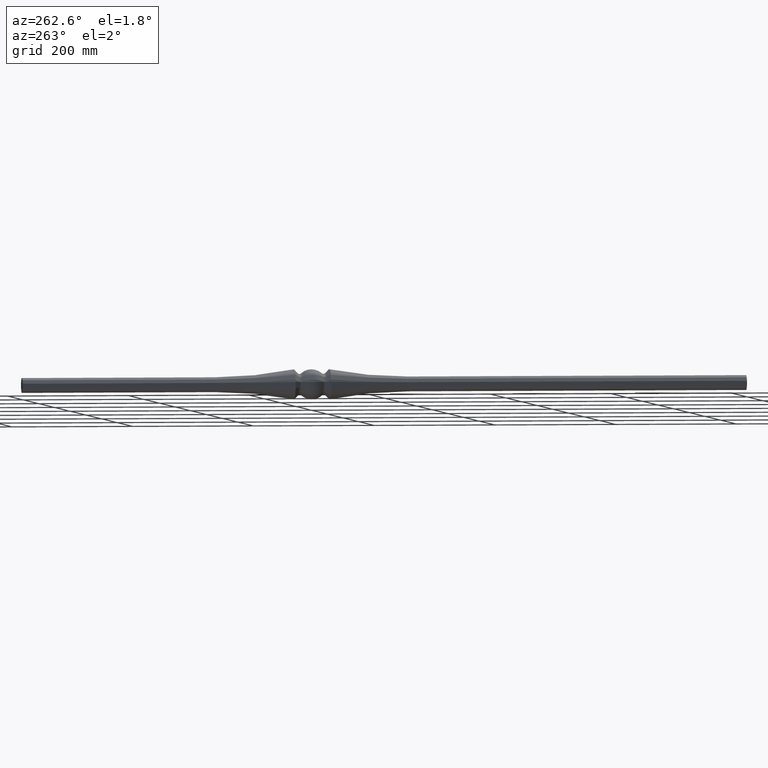
[diagram: clean part render]
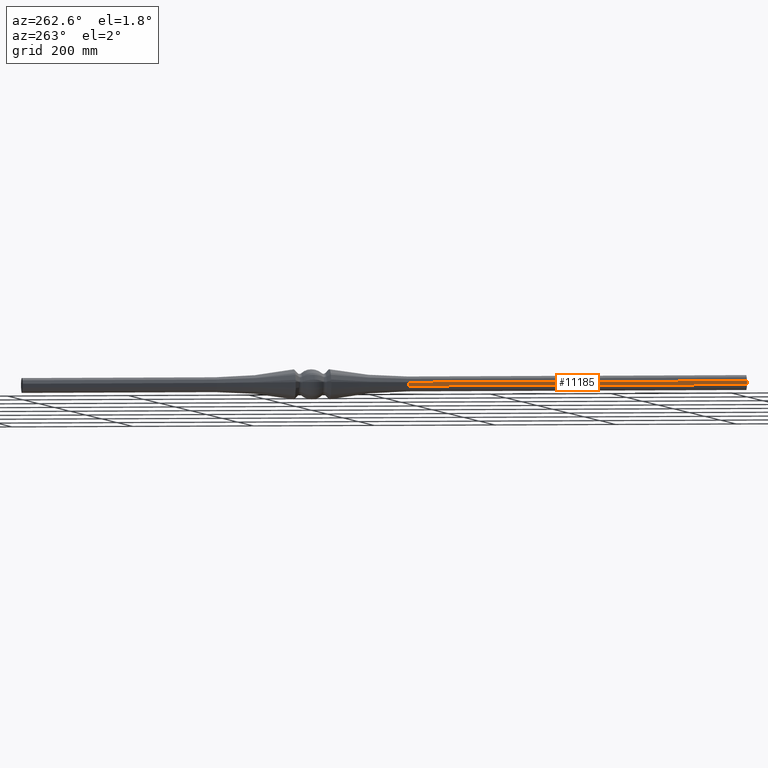
[diagram: same view with one face highlighted and labeled with its STEP entity id]
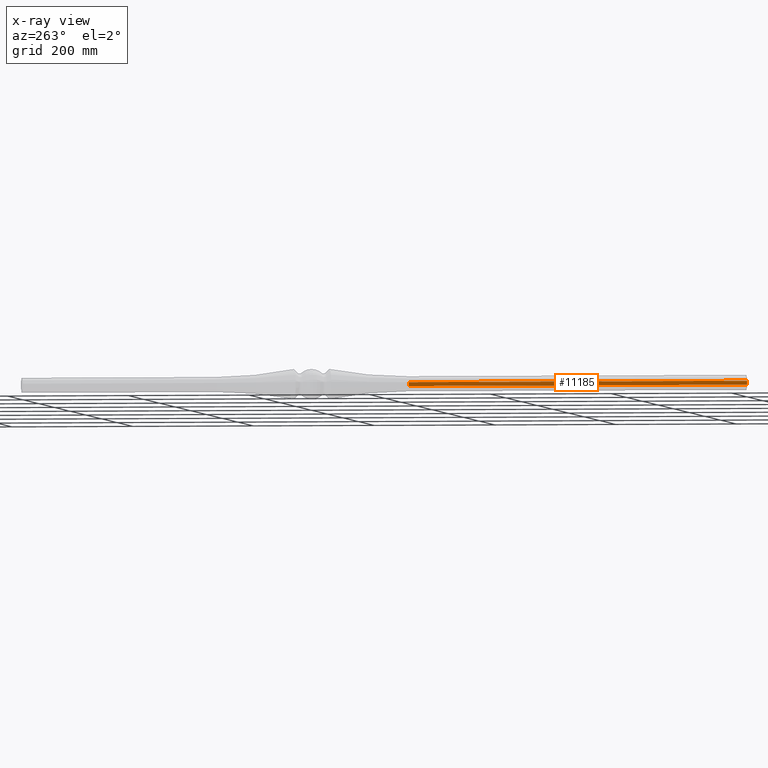
[diagram: x-ray of the same camera — body ghosted, the highlighted face saturated]
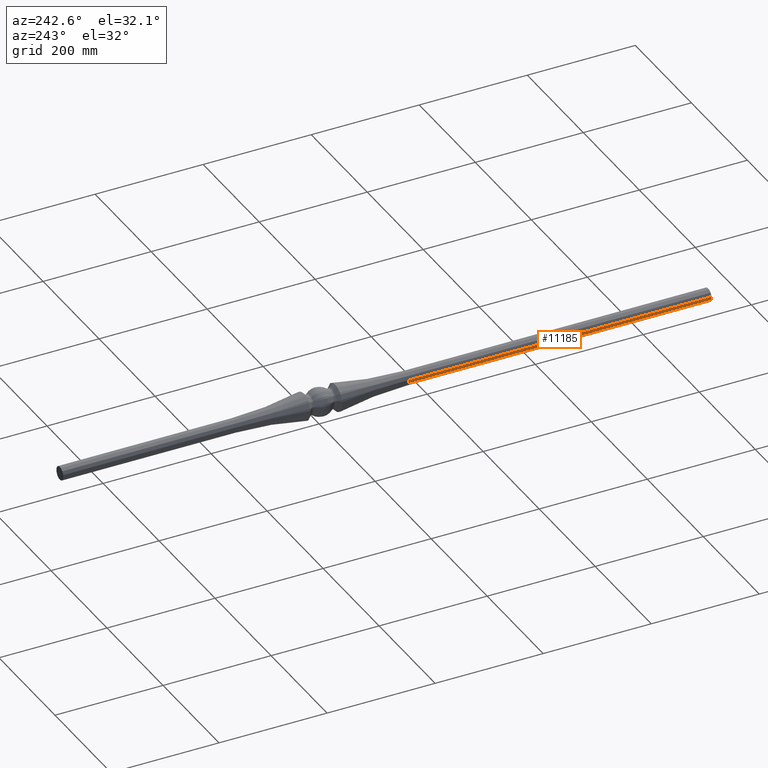
[diagram: same view with one face highlighted and labeled with its STEP entity id]
A machine part, auxiliary view. The second image highlights one B-rep face of the part: STEP entity #11185.
The next image is the same camera in x-ray: the body ghosted, the highlighted face saturated — about 0% of this face is hidden behind the body in this view.
A second angle (auxiliary view) of the same face is appended — the face is thin or edge-on in the first view.
In plain terms, the highlighted planar face has unit normal (-1, 0, 0).
Its self-contained STEP definition (entity closure, byte-faithful):
#805 = DIRECTION ( 'NONE',  ( -0.000000000000000000, -1.000000000000000000, -0.000000000000000000 ) ) ;
#885 = VECTOR ( 'NONE', #13996, 1000.000000000000000 ) ;
#4331 = VECTOR ( 'NONE', #18136, 1000.000000000000000 ) ;
#5119 = VERTEX_POINT ( 'NONE', #6600 ) ;
#6032 = LINE ( 'NONE', #16570, #14086 ) ;
#6172 = VERTEX_POINT ( 'NONE', #12943 ) ;
#6600 = CARTESIAN_POINT ( 'NONE',  ( -12.09999999999985043, -159.4142026448495244, -3.136877428271730217 ) ) ;
#7240 = ORIENTED_EDGE ( 'NONE', *, *, #15899, .F. ) ;
#7440 = ORIENTED_EDGE ( 'NONE', *, *, #9263, .T. ) ;
#7827 = VERTEX_POINT ( 'NONE', #19717 ) ;
#8787 = AXIS2_PLACEMENT_3D ( 'NONE', #13896, #14097, #17169 ) ;
#9263 = EDGE_CURVE ( 'NONE', #16578, #5119, #10729, .T. ) ;
#10729 = LINE ( 'NONE', #12047, #16491 ) ;
#10846 = ORIENTED_EDGE ( 'NONE', *, *, #10961, .F. ) ;
#10961 = EDGE_CURVE ( 'NONE', #16578, #7827, #6032, .T. ) ;
#11185 = ADVANCED_FACE ( 'NONE', ( #13127 ), #12547, .T. ) ;
#12047 = CARTESIAN_POINT ( 'NONE',  ( -12.09999999999985043, -159.4142026448495244, -5.000000000000000000 ) ) ;
#12313 = CARTESIAN_POINT ( 'NONE',  ( -12.10000000000004050, -720.0000000000000000, -5.000000000000000000 ) ) ;
#12547 = PLANE ( 'NONE',  #8787 ) ;
#12943 = CARTESIAN_POINT ( 'NONE',  ( -12.10000000000004050, -720.0000000000000000, -3.136877428271551249 ) ) ;
#12971 = ORIENTED_EDGE ( 'NONE', *, *, #18018, .T. ) ;
#13127 = FACE_OUTER_BOUND ( 'NONE', #19091, .T. ) ;
#13896 = CARTESIAN_POINT ( 'NONE',  ( -12.09999999999990727, -159.4142026448495244, -5.000000000000000000 ) ) ;
#13996 = DIRECTION ( 'NONE',  ( 0.000000000000000000, 0.000000000000000000, 1.000000000000000000 ) ) ;
#14086 = VECTOR ( 'NONE', #805, 1000.000000000000000 ) ;
#14097 = DIRECTION ( 'NONE',  ( -1.000000000000000000, 2.389799105174693410E-16, 0.000000000000000000 ) ) ;
#15127 = CARTESIAN_POINT ( 'NONE',  ( -12.09999999999985043, -159.4142026448495244, 3.136877428271446888 ) ) ;
#15899 = EDGE_CURVE ( 'NONE', #6172, #5119, #17658, .T. ) ;
#16491 = VECTOR ( 'NONE', #20015, 1000.000000000000000 ) ;
#16570 = CARTESIAN_POINT ( 'NONE',  ( -12.10000000000004050, -720.0000000000000000, 3.136877428271551249 ) ) ;
#16578 = VERTEX_POINT ( 'NONE', #15127 ) ;
#17169 = DIRECTION ( 'NONE',  ( -2.389799105174693410E-16, -1.000000000000000000, 0.000000000000000000 ) ) ;
#17658 = LINE ( 'NONE', #18195, #4331 ) ;
#18018 = EDGE_CURVE ( 'NONE', #6172, #7827, #18571, .T. ) ;
#18136 = DIRECTION ( 'NONE',  ( 0.000000000000000000, 1.000000000000000000, 0.000000000000000000 ) ) ;
#18195 = CARTESIAN_POINT ( 'NONE',  ( -12.10000000000004050, -720.0000000000000000, -3.136877428271551249 ) ) ;
#18571 = LINE ( 'NONE', #12313, #885 ) ;
#19091 = EDGE_LOOP ( 'NONE', ( #12971, #10846, #7440, #7240 ) ) ;
#19717 = CARTESIAN_POINT ( 'NONE',  ( -12.10000000000004050, -720.0000000000000000, 3.136877428271551249 ) ) ;
#20015 = DIRECTION ( 'NONE',  ( 0.000000000000000000, 0.000000000000000000, -1.000000000000000000 ) ) ;